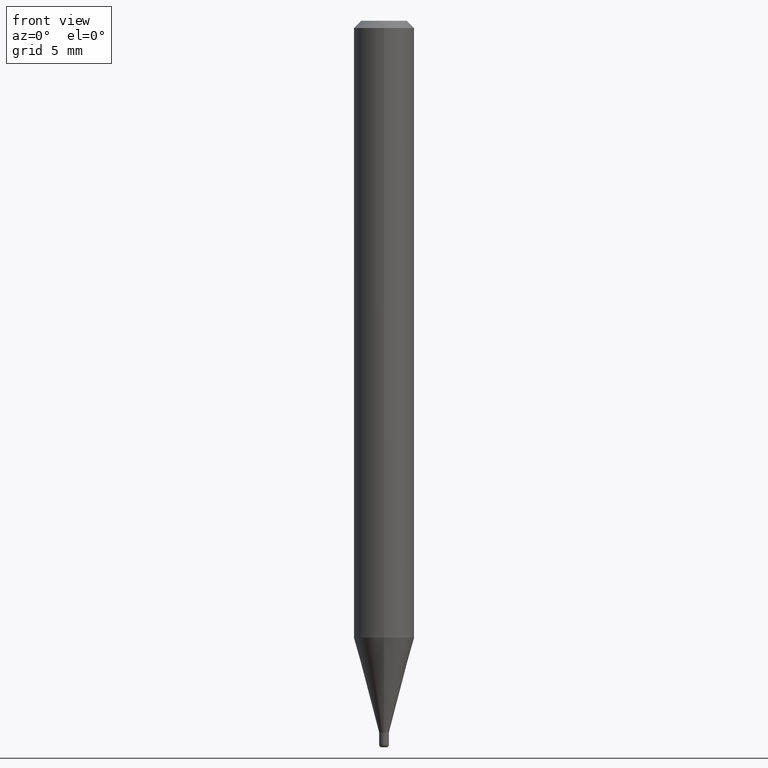
[diagram: clean part render]
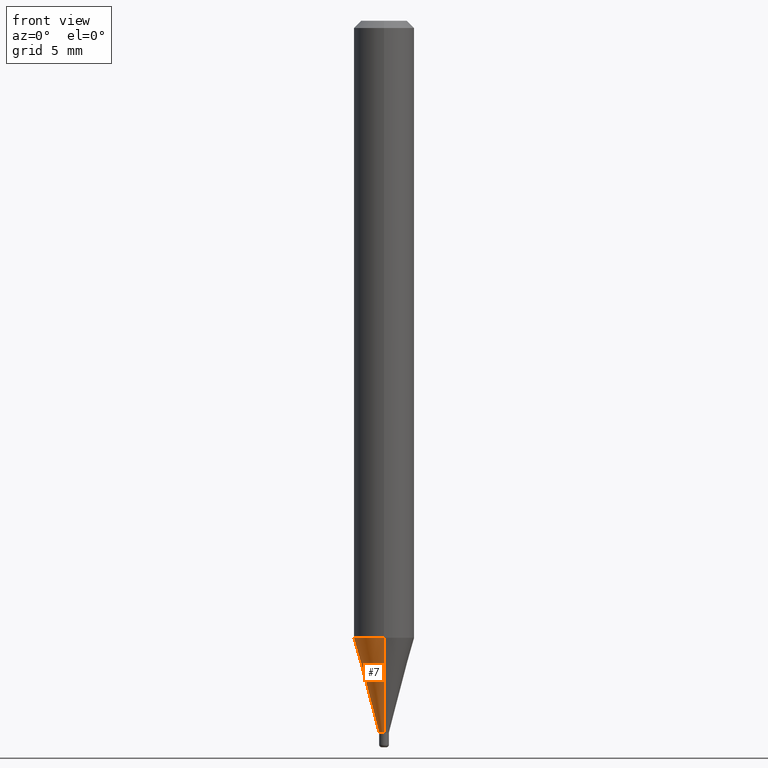
[diagram: same view with one face highlighted and labeled with its STEP entity id]
A machine part, front view. The second image highlights one B-rep face of the part: STEP entity #7.
In plain terms, the highlighted conical surface has half-angle 15 deg.
Its self-contained STEP definition (entity closure, byte-faithful):
#1 = CARTESIAN_POINT ( 'NONE',  ( 4.440892098500935790E-16, 0.06249999999999554523, -1.274067332602635050 ) ) ;
#3 = DIRECTION ( 'NONE',  ( -2.445517508157003732E-29, 3.491411594847488118E-15, 1.000000000000000000 ) ) ;
#7 = ADVANCED_FACE ( 'NONE', ( #78 ), #104, .T. ) ;
#17 = CARTESIAN_POINT ( 'NONE',  ( 3.594910736990795879E-29, -5.132375044425808748E-15, -1.470000000000000417 ) ) ;
#23 = VECTOR ( 'NONE', #407, 39.37007874015748854 ) ;
#42 = DIRECTION ( 'NONE',  ( -6.982962677686265133E-15, -1.000000000000000000, 0.000000000000000000 ) ) ;
#61 = DIRECTION ( 'NONE',  ( -2.445517508157003732E-29, 3.491411594847488118E-15, 1.000000000000000000 ) ) ;
#63 = VERTEX_POINT ( 'NONE', #1 ) ;
#76 = VECTOR ( 'NONE', #285, 39.37007874015748854 ) ;
#78 = FACE_OUTER_BOUND ( 'NONE', #449, .T. ) ;
#92 = AXIS2_PLACEMENT_3D ( 'NONE', #17, #61, #170 ) ;
#104 = CONICAL_SURFACE ( 'NONE', #402, 0.01000000000000009041, 0.2617993877991494633 ) ;
#135 = EDGE_CURVE ( 'NONE', #178, #415, #246, .T. ) ;
#136 = ORIENTED_EDGE ( 'NONE', *, *, #323, .F. ) ;
#142 = CARTESIAN_POINT ( 'NONE',  ( -6.982962677682733107E-17, -0.01000000000000522173, -1.470000000000000417 ) ) ;
#159 = LINE ( 'NONE', #237, #76 ) ;
#163 = ORIENTED_EDGE ( 'NONE', *, *, #135, .T. ) ;
#170 = DIRECTION ( 'NONE',  ( -6.982962677686265133E-15, -1.000000000000000000, 0.000000000000000000 ) ) ;
#178 = VERTEX_POINT ( 'NONE', #217 ) ;
#188 = ORIENTED_EDGE ( 'NONE', *, *, #247, .T. ) ;
#201 = CARTESIAN_POINT ( 'NONE',  ( -6.982962677682733107E-17, -0.01000000000000522173, -1.470000000000000417 ) ) ;
#205 = CARTESIAN_POINT ( 'NONE',  ( 3.115753968450635756E-29, -4.448293457665250698E-15, -1.274067332602634828 ) ) ;
#217 = CARTESIAN_POINT ( 'NONE',  ( 2.575717417130703193E-16, 0.009999999999994957367, -1.470000000000000417 ) ) ;
#233 = LINE ( 'NONE', #201, #23 ) ;
#234 = CARTESIAN_POINT ( 'NONE',  ( 3.594910736990795879E-29, -5.132375044425808748E-15, -1.470000000000000417 ) ) ;
#237 = CARTESIAN_POINT ( 'NONE',  ( 7.105427357604659116E-17, 0.009999999999994957367, -1.470000000000000417 ) ) ;
#246 = CIRCLE ( 'NONE', #92, 0.01000000000000009041 ) ;
#247 = EDGE_CURVE ( 'NONE', #415, #485, #233, .T. ) ;
#267 = EDGE_CURVE ( 'NONE', #178, #63, #159, .T. ) ;
#285 = DIRECTION ( 'NONE',  ( 1.839019923739594399E-15, 0.2588190451025241257, 0.9659258262890673130 ) ) ;
#312 = CIRCLE ( 'NONE', #335, 0.06250000000000000000 ) ;
#323 = EDGE_CURVE ( 'NONE', #63, #485, #312, .T. ) ;
#335 = AXIS2_PLACEMENT_3D ( 'NONE', #205, #3, #445 ) ;
#373 = ORIENTED_EDGE ( 'NONE', *, *, #267, .F. ) ;
#402 = AXIS2_PLACEMENT_3D ( 'NONE', #234, #412, #42 ) ;
#407 = DIRECTION ( 'NONE',  ( -1.807323732225324223E-15, -0.2588190451025173533, 0.9659258262890690894 ) ) ;
#412 = DIRECTION ( 'NONE',  ( -2.445517508157003732E-29, 3.491411594847488118E-15, 1.000000000000000000 ) ) ;
#415 = VERTEX_POINT ( 'NONE', #142 ) ;
#445 = DIRECTION ( 'NONE',  ( -6.982962677686265922E-15, -1.000000000000000000, 4.370956789862821150E-15 ) ) ;
#449 = EDGE_LOOP ( 'NONE', ( #373, #163, #188, #136 ) ) ;
#485 = VERTEX_POINT ( 'NONE', #490 ) ;
#490 = CARTESIAN_POINT ( 'NONE',  ( -4.364351673553604601E-16, -0.06250000000000444089, -1.274067332602634384 ) ) ;